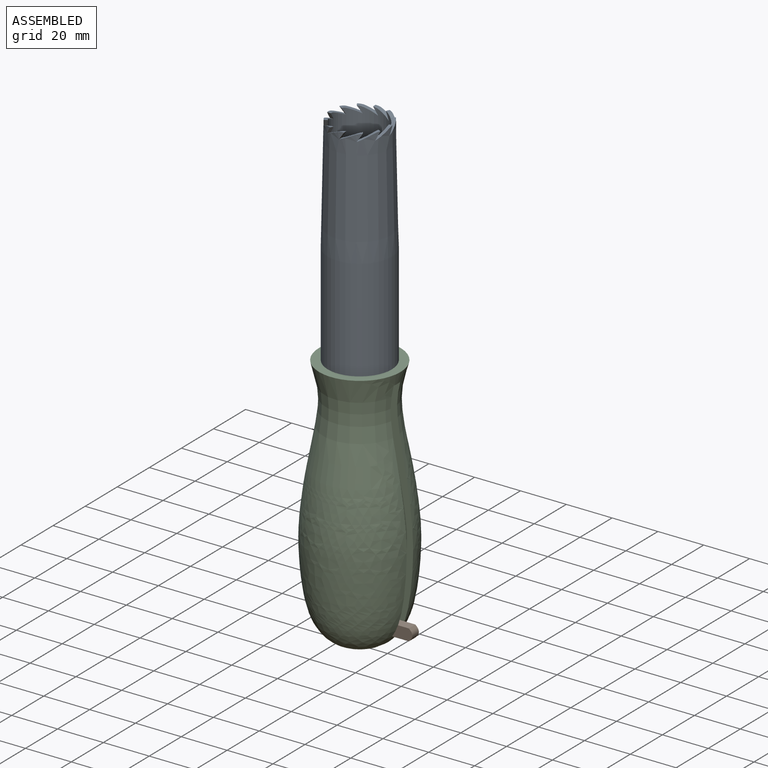
[diagram: assembled view]
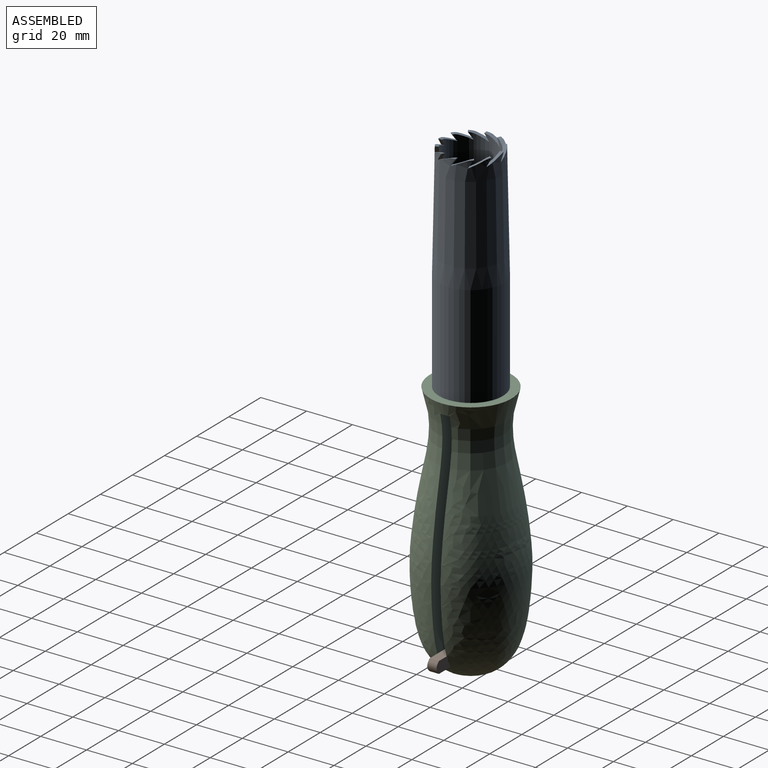
[diagram: assembled view, second angle]
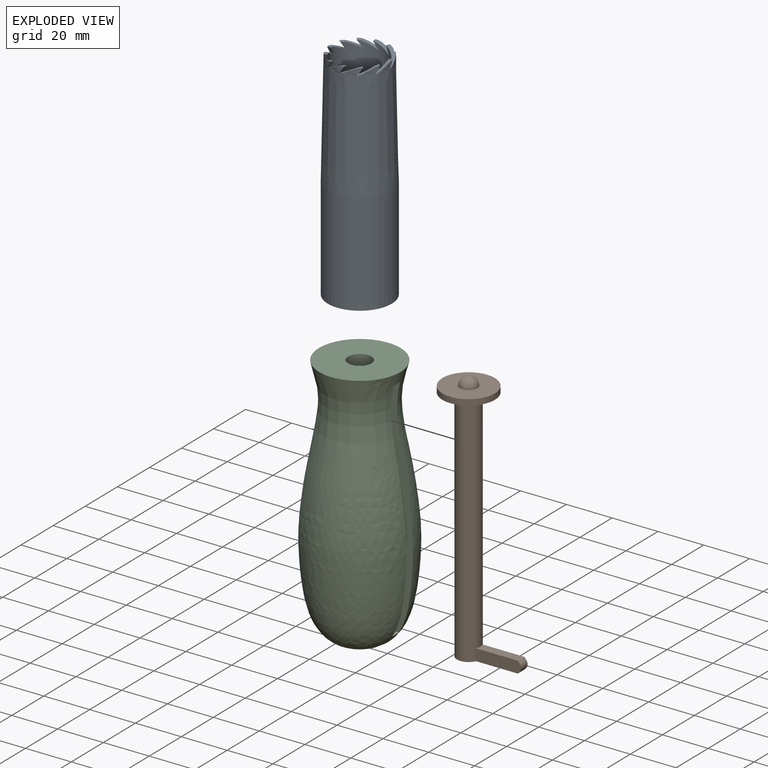
[diagram: exploded view]
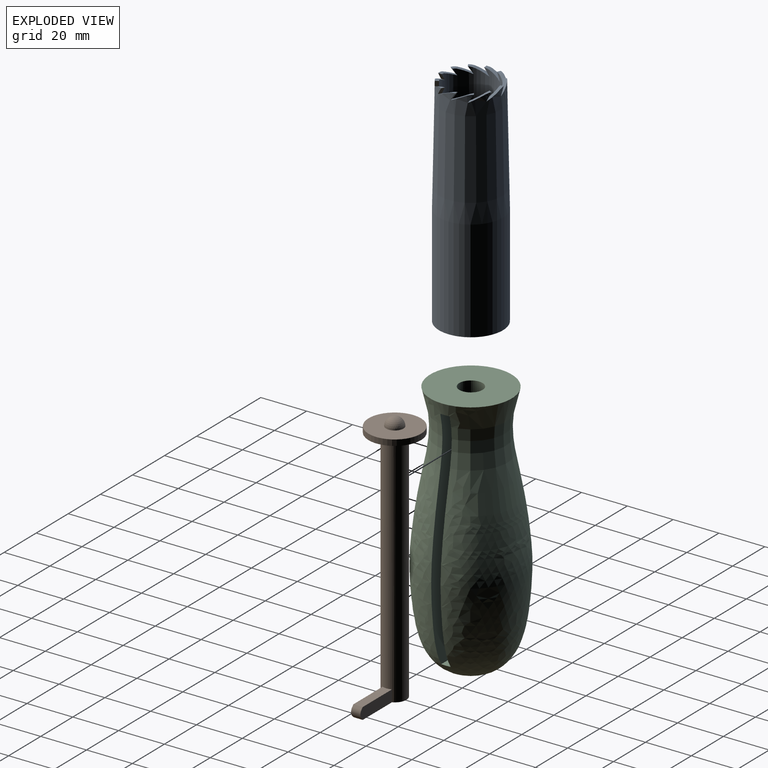
[diagram: exploded view, second angle]
ASSEMBLY  parts=3 mates=4
PART A: 42 faces, bbox 28.2x28.2x95.3 mm
  f0: plane 3.27x2.22mm, normal (0,0.83,-0.56), area 6mm2, adj f1,f5,f7,f41
  f1: cylinder r=11.43mm len=95.13mm, axis (0,0,-1), area 6731.4mm2, adj f0,f2,f4,f7,f8,f9,f10,f11
  f2: cylinder r=11.43mm len=3.13mm, axis (0,0,-1), area 2.8mm2, adj f1,f22,f23,f24
  f3: cylinder r=13.97mm len=44.45mm, axis (0,0,-1), area 3901.6mm2, adj f4,f5
  f4: plane 27.94x27.94mm, normal (0,0,-1), area 202.7mm2, adj f1,f3
  f5: cone r=12.95mm half-angle=1.1deg, axis (0,0,-1), area 4187.9mm2, adj f0,f3,f6,f7,f8,f9,f10,f11
  f6: cone r=12.95mm half-angle=1.1deg, axis (0,0,-1), area 3.2mm2, adj f5,f23,f24
  f7: plane 6.21x3.47mm, normal (0,-0.41,0.91), area 11mm2, adj f0,f1,f5,f8
  f8: extruded ~2.76x2.16mm, area 3.5mm2, adj f1,f5,f7,f9
  f9: plane 3.27x2.66mm, normal (-0.41,0.72,-0.56), area 6mm2, adj f1,f5,f8,f10
  f10: plane 6.07x5.4mm, normal (0.21,-0.36,0.91), area 11mm2, adj f1,f5,f9,f11
  f11: extruded ~3.47x3.25mm, area 3.5mm2, adj f1,f5,f10,f12
  f12: plane 3.27x2.78mm, normal (-0.72,0.41,-0.56), area 6mm2, adj f1,f5,f11,f13
  f13: plane 7.07x3.17mm, normal (0.36,-0.21,0.91), area 11mm2, adj f1,f5,f12,f14
  f14: extruded ~3.47x3.25mm, area 3.5mm2, adj f1,f5,f13,f15
  f15: plane 3.27x2.22mm, normal (-0.83,0,-0.56), area 6mm2, adj f1,f5,f14,f16
  f16: plane 6.21x3.47mm, normal (0.41,0,0.91), area 11mm2, adj f1,f5,f15,f17
  f17: extruded ~2.76x2.16mm, area 3.5mm2, adj f1,f5,f16,f18
  f18: plane 3.27x2.66mm, normal (-0.72,-0.41,-0.56), area 6mm2, adj f1,f5,f17,f19
  f19: plane 6.07x5.4mm, normal (0.36,0.21,0.91), area 11mm2, adj f1,f5,f18,f20
  f20: extruded ~3.47x3.25mm, area 3.5mm2, adj f1,f5,f19,f21
  f21: plane 3.27x2.78mm, normal (-0.41,-0.72,-0.56), area 6mm2, adj f1,f5,f20,f22
  f22: plane 7.05x3.15mm, normal (0.21,0.36,0.91), area 11mm2, adj f1,f2,f5,f21,f23
  f23: extruded ~3.47x3.25mm, area 3.5mm2, adj f2,f5,f6,f22,f24
  f24: plane 3.27x2.22mm, normal (0,-0.83,-0.56), area 6mm2, adj f2,f6,f23,f25
  f25: plane 6.21x3.47mm, normal (0,0.41,0.91), area 11mm2, adj f1,f5,f24,f26
  f26: extruded ~2.76x2.16mm, area 3.5mm2, adj f1,f5,f25,f27
  f27: plane 3.27x2.66mm, normal (0.41,-0.72,-0.56), area 6mm2, adj f1,f5,f26,f28
  f28: plane 6.07x5.4mm, normal (-0.21,0.36,0.91), area 11mm2, adj f1,f5,f27,f29
  f29: extruded ~3.47x3.25mm, area 3.5mm2, adj f1,f5,f28,f30
  f30: plane 3.27x2.78mm, normal (0.72,-0.41,-0.56), area 6mm2, adj f1,f5,f29,f31
  f31: plane 7.07x3.17mm, normal (-0.36,0.21,0.91), area 11mm2, adj f1,f5,f30,f32
  f32: extruded ~3.47x3.25mm, area 3.5mm2, adj f1,f5,f31,f33
  f33: plane 3.27x2.22mm, normal (0.83,0,-0.56), area 6mm2, adj f1,f5,f32,f34
  f34: plane 6.21x3.47mm, normal (-0.41,0,0.91), area 11mm2, adj f1,f5,f33,f35
  f35: extruded ~2.76x2.16mm, area 3.5mm2, adj f1,f5,f34,f36
  f36: plane 3.27x2.66mm, normal (0.72,0.41,-0.56), area 6mm2, adj f1,f5,f35,f37
  f37: plane 6.07x5.4mm, normal (-0.36,-0.21,0.91), area 11mm2, adj f1,f5,f36,f38
  f38: extruded ~3.47x3.25mm, area 3.5mm2, adj f1,f5,f37,f39
  f39: plane 3.27x2.78mm, normal (0.41,0.72,-0.56), area 6mm2, adj f1,f5,f38,f40
  f40: plane 7.07x3.17mm, normal (-0.21,-0.36,0.91), area 11mm2, adj f1,f5,f39,f41
  f41: extruded ~3.47x3.25mm, area 3.5mm2, adj f0,f1,f5,f40
PART B: 12 faces, bbox 110.5x35.8x22.9 mm
  f0: plane 27.94x10.16mm, normal (1,0,0), area 153.9mm2, adj f1,f2,f3,f5
  f1: cylinder r=5.08mm len=104.14mm, axis (1,0,0), area 3302.8mm2, adj f0,f2,f3,f4,f10
  f2: plane 19.69x5.08mm, normal (0,0,-1), area 97.5mm2, adj f0,f1,f4,f5,f6,f7
  f3: plane 19.69x5.08mm, normal (0,0,1), area 97.5mm2, adj f0,f1,f4,f5,f6,f7
  f4: plane 18.2x4.06mm, normal (-1,0,0), area 72.8mm2, adj f1,f2,f3,f6
  f5: plane 4.06x0.74mm, normal (0.71,-0.71,0), area 4.3mm2, adj f0,f2,f3,f7
  f6: plane 4.06x0.74mm, normal (-0.71,-0.71,0), area 4.3mm2, adj f2,f3,f4,f7
  f7: cylinder r=2.54mm len=4.06mm, axis (0,0,-1), area 16.2mm2, adj f2,f3,f5,f6
  f8: cylinder r=11.43mm len=22.86mm, axis (1,0,0), area 182.4mm2, adj f9,f10
  f9: plane 22.86x22.86mm, normal (-1,0,0), area 364.8mm2, adj f8,f11
  f10: plane 22.86x22.86mm, normal (1,0,0), area 329.4mm2, adj f1,f8
  f11: sphere r=3.81mm, area 91.2mm2, adj f9
PART C: 7 faces, bbox 104.1x43.9x43.9 mm
  f0: revolved ~104.14x43.94mm, area 155.4mm2, adj f2,f3,f4,f5,f6
  f1: cylinder r=5.08mm len=104.14mm, axis (-1,0,0), area 2909.8mm2, adj f2,f3,f4,f5,f6
  f2: plane 20.79x10.16mm, normal (-1,0,0), area 124.7mm2, adj f0,f1,f4,f6
  f3: plane 35.56x35.56mm, normal (-1,0,0), area 912.1mm2, adj f0,f1
  f4: plane 99.06x17.25mm, normal (0,0,-1), area 1410.2mm2, adj f0,f1,f2,f5
  f5: plane 11.7x4.06mm, normal (1,0,0), area 46.2mm2, adj f0,f1,f4,f6
  f6: plane 99.06x17.25mm, normal (0,0,1), area 1410.2mm2, adj f0,f1,f2,f5
PLACE A t=(-89.9,56.88,9.07)mm
PLACE B rot(axis=(-0.58,0.58,0.58),120deg) t=(-89.9,56.88,9.07)mm
PLACE C rot(axis=(0.58,0.58,-0.58),120deg) t=(-89.9,56.88,9.07)mm fixed
MATE fastened A.f3 <-> C.f1  axis (0,0,-1) through (-89.9,56.88,9.07)mm
MATE parallel B.f2 <-> C.f4  axis (0,-1,0) through (-75.64,54.84,-92.53)mm
MATE slider B.f1 <-> C.f1  axis (0,0,-1) through (-89.9,56.88,-43)mm
MATE cylindrical A.f1 <-> B.f8  axis (0,0,-1) through (-89.9,56.88,56.92)mm
